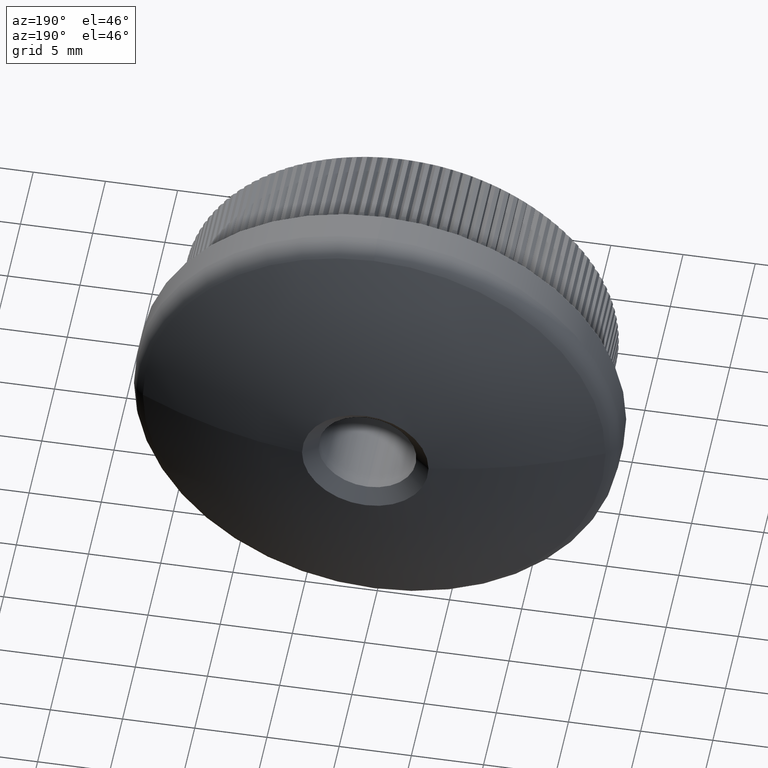
[diagram: clean part render]
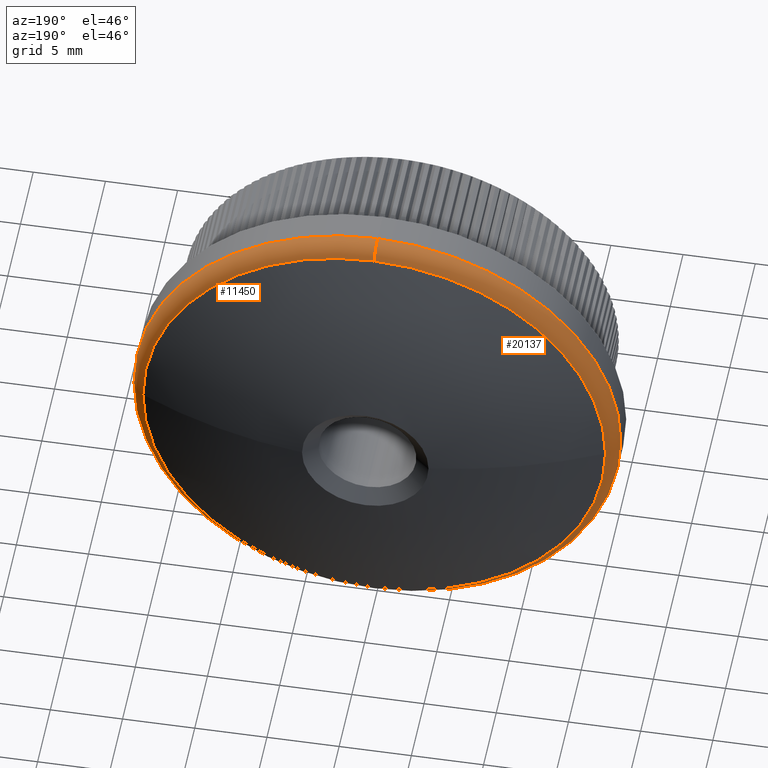
[diagram: same view with one multi-face feature highlighted, each face labeled with its STEP entity id]
A machine part, auxiliary view. The highlighted faces form ONE feature: a constant-radius fillet chain: 2 tangent blend faces with common blend radius 1.5 mm. The faces share edges in the B-rep.
Their STEP definitions:
[1] entity #11450 (Torus):
#354 = DIRECTION ( 'NONE',  ( -0.0000000000000000000, -1.000000000000000000, -0.0000000000000000000 ) ) ;
#800 = DIRECTION ( 'NONE',  ( -1.000000000000000000, 0.0000000000000000000, 0.0000000000000000000 ) ) ;
#1783 = ORIENTED_EDGE ( 'NONE', *, *, #26295, .F. ) ;
#2655 = CARTESIAN_POINT ( 'NONE',  ( 0.0000000000000000000, 9.885380484236923900, -16.85000000000000500 ) ) ;
#3977 = DIRECTION ( 'NONE',  ( 0.0000000000000000000, 1.000000000000000000, 0.0000000000000000000 ) ) ;
#4359 = EDGE_CURVE ( 'NONE', #11336, #19727, #13473, .T. ) ;
#4390 = CARTESIAN_POINT ( 'NONE',  ( 0.0000000000000000000, 9.885380484236923900, 0.0000000000000000000 ) ) ;
#4687 = VERTEX_POINT ( 'NONE', #4922 ) ;
#4922 = CARTESIAN_POINT ( 'NONE',  ( 0.0000000000000000000, 11.22776762478764600, -16.01932560453346000 ) ) ;
#5836 = DIRECTION ( 'NONE',  ( -1.224646799147353500E-016, 0.0000000000000000000, -1.000000000000000000 ) ) ;
#6245 = AXIS2_PLACEMENT_3D ( 'NONE', #17100, #800, #17185 ) ;
#6374 = TOROIDAL_SURFACE ( 'NONE', #20536, 15.35000000000000500, 1.500000000000000000 ) ;
#7728 = EDGE_LOOP ( 'NONE', ( #25017, #20819, #8956, #16589, #1783 ) ) ;
#8057 = EDGE_CURVE ( 'NONE', #4687, #22828, #10322, .T. ) ;
#8956 = ORIENTED_EDGE ( 'NONE', *, *, #17333, .F. ) ;
#9099 = EDGE_CURVE ( 'NONE', #11336, #24751, #14781, .T. ) ;
#10224 = CARTESIAN_POINT ( 'NONE',  ( 2.063529856563290600E-015, 9.885380484236923900, 16.85000000000000500 ) ) ;
#10322 = CIRCLE ( 'NONE', #6245, 1.499999999999999600 ) ;
#10702 = DIRECTION ( 'NONE',  ( 0.0000000000000000000, 0.0000000000000000000, -1.000000000000000000 ) ) ;
#11312 = CARTESIAN_POINT ( 'NONE',  ( 0.0000000000000000000, 9.885380484236923900, 0.0000000000000000000 ) ) ;
#11336 = VERTEX_POINT ( 'NONE', #22170 ) ;
#11392 = AXIS2_PLACEMENT_3D ( 'NONE', #11984, #14379, #5836 ) ;
#11450 = ADVANCED_FACE ( 'NONE', ( #20841 ), #6374, .T. ) ;
#11525 = CIRCLE ( 'NONE', #24325, 16.01932560453346000 ) ;
#11984 = CARTESIAN_POINT ( 'NONE',  ( 1.879832836691188300E-015, 9.885380484236923900, 15.35000000000000500 ) ) ;
#13473 = CIRCLE ( 'NONE', #11392, 1.499999999999999600 ) ;
#14379 = DIRECTION ( 'NONE',  ( 1.000000000000000000, 0.0000000000000000000, -1.224646799147353500E-016 ) ) ;
#14781 = CIRCLE ( 'NONE', #20875, 16.01932560453346000 ) ;
#14784 = DIRECTION ( 'NONE',  ( 0.0000000000000000000, 0.0000000000000000000, -1.000000000000000000 ) ) ;
#15551 = CARTESIAN_POINT ( 'NONE',  ( 16.01932560453345300, 11.22776762478764600, 0.0000000000000000000 ) ) ;
#16307 = CARTESIAN_POINT ( 'NONE',  ( 0.0000000000000000000, 11.22776762478764600, 0.0000000000000000000 ) ) ;
#16589 = ORIENTED_EDGE ( 'NONE', *, *, #8057, .F. ) ;
#16698 = CARTESIAN_POINT ( 'NONE',  ( 0.0000000000000000000, 11.22776762478764600, 0.0000000000000000000 ) ) ;
#17100 = CARTESIAN_POINT ( 'NONE',  ( 0.0000000000000000000, 9.885380484236923900, -15.35000000000000500 ) ) ;
#17185 = DIRECTION ( 'NONE',  ( 0.0000000000000000000, 0.0000000000000000000, 1.000000000000000000 ) ) ;
#17333 = EDGE_CURVE ( 'NONE', #22828, #19727, #21916, .T. ) ;
#17338 = DIRECTION ( 'NONE',  ( -0.0000000000000000000, -1.000000000000000000, -0.0000000000000000000 ) ) ;
#19461 = DIRECTION ( 'NONE',  ( 0.0000000000000000000, 0.0000000000000000000, -1.000000000000000000 ) ) ;
#19727 = VERTEX_POINT ( 'NONE', #10224 ) ;
#20536 = AXIS2_PLACEMENT_3D ( 'NONE', #4390, #354, #10702 ) ;
#20776 = DIRECTION ( 'NONE',  ( 0.0000000000000000000, 1.000000000000000000, 0.0000000000000000000 ) ) ;
#20819 = ORIENTED_EDGE ( 'NONE', *, *, #4359, .T. ) ;
#20841 = FACE_OUTER_BOUND ( 'NONE', #7728, .T. ) ;
#20875 = AXIS2_PLACEMENT_3D ( 'NONE', #16698, #20776, #14784 ) ;
#21916 = CIRCLE ( 'NONE', #24560, 16.85000000000000500 ) ;
#22170 = CARTESIAN_POINT ( 'NONE',  ( 2.012665719586202600E-015, 11.22776762478764600, 16.01932560453346000 ) ) ;
#22828 = VERTEX_POINT ( 'NONE', #2655 ) ;
#24325 = AXIS2_PLACEMENT_3D ( 'NONE', #16307, #3977, #26365 ) ;
#24560 = AXIS2_PLACEMENT_3D ( 'NONE', #11312, #17338, #19461 ) ;
#24751 = VERTEX_POINT ( 'NONE', #15551 ) ;
#25017 = ORIENTED_EDGE ( 'NONE', *, *, #9099, .F. ) ;
#26295 = EDGE_CURVE ( 'NONE', #24751, #4687, #11525, .T. ) ;
#26365 = DIRECTION ( 'NONE',  ( 0.0000000000000000000, 0.0000000000000000000, -1.000000000000000000 ) ) ;
[2] entity #20137 (Torus):
#630 = CARTESIAN_POINT ( 'NONE',  ( 0.0000000000000000000, 9.885380484236923900, 0.0000000000000000000 ) ) ;
#800 = DIRECTION ( 'NONE',  ( -1.000000000000000000, 0.0000000000000000000, 0.0000000000000000000 ) ) ;
#1130 = EDGE_CURVE ( 'NONE', #19727, #22828, #15849, .T. ) ;
#1131 = EDGE_LOOP ( 'NONE', ( #3336, #9562, #16966, #16888, #2360 ) ) ;
#2360 = ORIENTED_EDGE ( 'NONE', *, *, #1130, .F. ) ;
#2655 = CARTESIAN_POINT ( 'NONE',  ( 0.0000000000000000000, 9.885380484236923900, -16.85000000000000500 ) ) ;
#3336 = ORIENTED_EDGE ( 'NONE', *, *, #4359, .F. ) ;
#3368 = DIRECTION ( 'NONE',  ( 0.0000000000000000000, 1.000000000000000000, 0.0000000000000000000 ) ) ;
#3574 = EDGE_CURVE ( 'NONE', #4687, #10219, #15770, .T. ) ;
#3620 = AXIS2_PLACEMENT_3D ( 'NONE', #10369, #16232, #5941 ) ;
#4359 = EDGE_CURVE ( 'NONE', #11336, #19727, #13473, .T. ) ;
#4687 = VERTEX_POINT ( 'NONE', #4922 ) ;
#4922 = CARTESIAN_POINT ( 'NONE',  ( 0.0000000000000000000, 11.22776762478764600, -16.01932560453346000 ) ) ;
#5298 = CARTESIAN_POINT ( 'NONE',  ( -16.01932560453345300, 11.22776762478764600, 1.961801582609113400E-015 ) ) ;
#5831 = CIRCLE ( 'NONE', #22211, 16.01932560453346000 ) ;
#5836 = DIRECTION ( 'NONE',  ( -1.224646799147353500E-016, 0.0000000000000000000, -1.000000000000000000 ) ) ;
#5941 = DIRECTION ( 'NONE',  ( 0.0000000000000000000, 0.0000000000000000000, -1.000000000000000000 ) ) ;
#6245 = AXIS2_PLACEMENT_3D ( 'NONE', #17100, #800, #17185 ) ;
#6827 = DIRECTION ( 'NONE',  ( -0.0000000000000000000, -1.000000000000000000, -0.0000000000000000000 ) ) ;
#8057 = EDGE_CURVE ( 'NONE', #4687, #22828, #10322, .T. ) ;
#9562 = ORIENTED_EDGE ( 'NONE', *, *, #21963, .F. ) ;
#9673 = CARTESIAN_POINT ( 'NONE',  ( 0.0000000000000000000, 11.22776762478764600, 0.0000000000000000000 ) ) ;
#10219 = VERTEX_POINT ( 'NONE', #5298 ) ;
#10224 = CARTESIAN_POINT ( 'NONE',  ( 2.063529856563290600E-015, 9.885380484236923900, 16.85000000000000500 ) ) ;
#10322 = CIRCLE ( 'NONE', #6245, 1.499999999999999600 ) ;
#10369 = CARTESIAN_POINT ( 'NONE',  ( 0.0000000000000000000, 11.22776762478764600, 0.0000000000000000000 ) ) ;
#11149 = DIRECTION ( 'NONE',  ( -0.0000000000000000000, -1.000000000000000000, -0.0000000000000000000 ) ) ;
#11336 = VERTEX_POINT ( 'NONE', #22170 ) ;
#11392 = AXIS2_PLACEMENT_3D ( 'NONE', #11984, #14379, #5836 ) ;
#11984 = CARTESIAN_POINT ( 'NONE',  ( 1.879832836691188300E-015, 9.885380484236923900, 15.35000000000000500 ) ) ;
#13473 = CIRCLE ( 'NONE', #11392, 1.499999999999999600 ) ;
#14379 = DIRECTION ( 'NONE',  ( 1.000000000000000000, 0.0000000000000000000, -1.224646799147353500E-016 ) ) ;
#15014 = DIRECTION ( 'NONE',  ( 0.0000000000000000000, 0.0000000000000000000, -1.000000000000000000 ) ) ;
#15770 = CIRCLE ( 'NONE', #3620, 16.01932560453346000 ) ;
#15849 = CIRCLE ( 'NONE', #16010, 16.85000000000000500 ) ;
#16010 = AXIS2_PLACEMENT_3D ( 'NONE', #630, #11149, #15014 ) ;
#16232 = DIRECTION ( 'NONE',  ( 0.0000000000000000000, 1.000000000000000000, 0.0000000000000000000 ) ) ;
#16888 = ORIENTED_EDGE ( 'NONE', *, *, #8057, .T. ) ;
#16966 = ORIENTED_EDGE ( 'NONE', *, *, #3574, .F. ) ;
#17100 = CARTESIAN_POINT ( 'NONE',  ( 0.0000000000000000000, 9.885380484236923900, -15.35000000000000500 ) ) ;
#17185 = DIRECTION ( 'NONE',  ( 0.0000000000000000000, 0.0000000000000000000, 1.000000000000000000 ) ) ;
#19332 = CARTESIAN_POINT ( 'NONE',  ( 0.0000000000000000000, 9.885380484236923900, 0.0000000000000000000 ) ) ;
#19727 = VERTEX_POINT ( 'NONE', #10224 ) ;
#20137 = ADVANCED_FACE ( 'NONE', ( #23206 ), #22576, .T. ) ;
#21746 = DIRECTION ( 'NONE',  ( 0.0000000000000000000, 0.0000000000000000000, -1.000000000000000000 ) ) ;
#21963 = EDGE_CURVE ( 'NONE', #10219, #11336, #5831, .T. ) ;
#22170 = CARTESIAN_POINT ( 'NONE',  ( 2.012665719586202600E-015, 11.22776762478764600, 16.01932560453346000 ) ) ;
#22211 = AXIS2_PLACEMENT_3D ( 'NONE', #9673, #3368, #21746 ) ;
#22576 = TOROIDAL_SURFACE ( 'NONE', #24598, 15.35000000000000500, 1.500000000000000000 ) ;
#22828 = VERTEX_POINT ( 'NONE', #2655 ) ;
#23206 = FACE_OUTER_BOUND ( 'NONE', #1131, .T. ) ;
#24598 = AXIS2_PLACEMENT_3D ( 'NONE', #19332, #6827, #25302 ) ;
#25302 = DIRECTION ( 'NONE',  ( 0.0000000000000000000, 0.0000000000000000000, -1.000000000000000000 ) ) ;